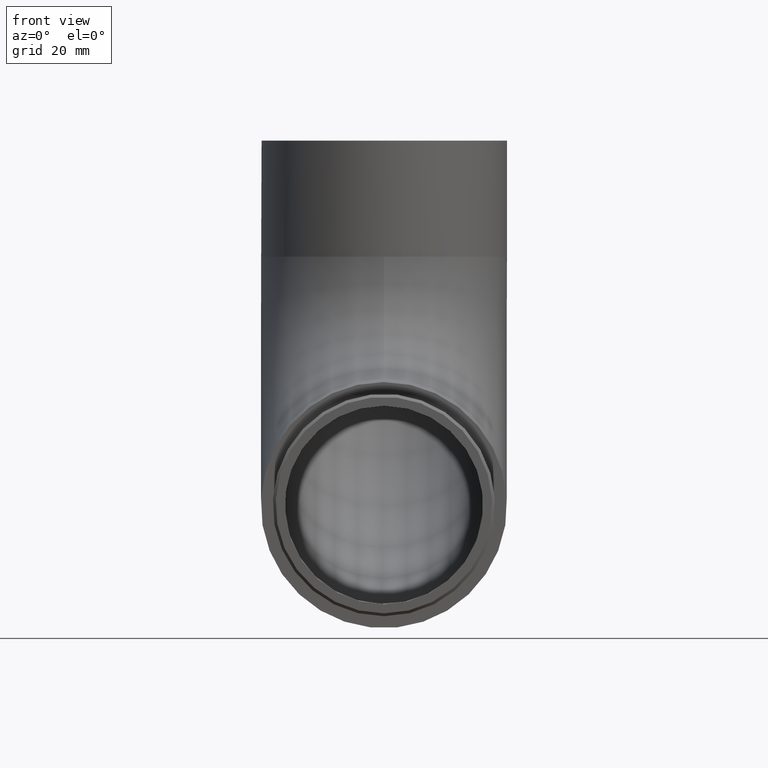
[diagram: clean part render]
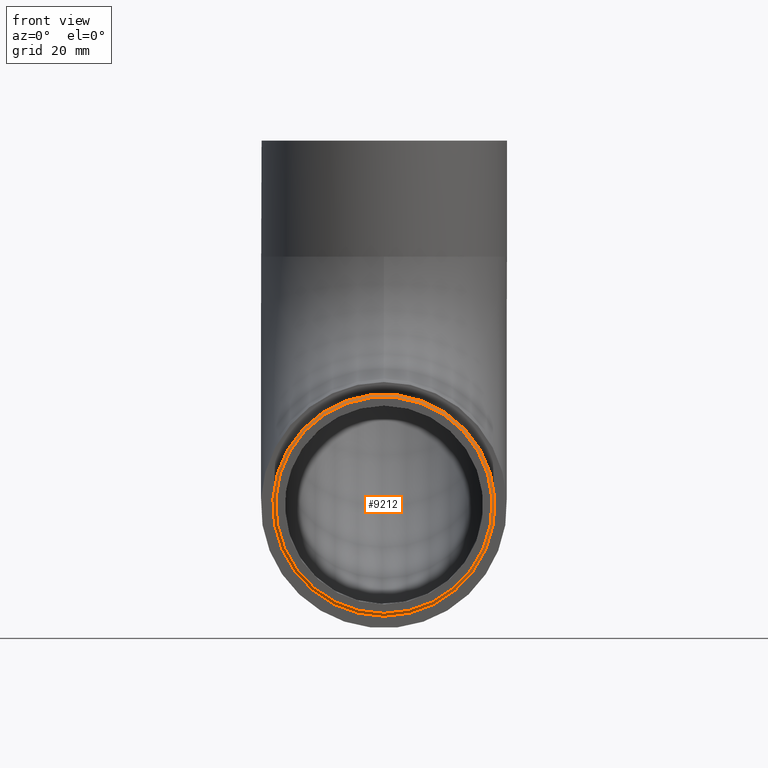
[diagram: same view with one face highlighted and labeled with its STEP entity id]
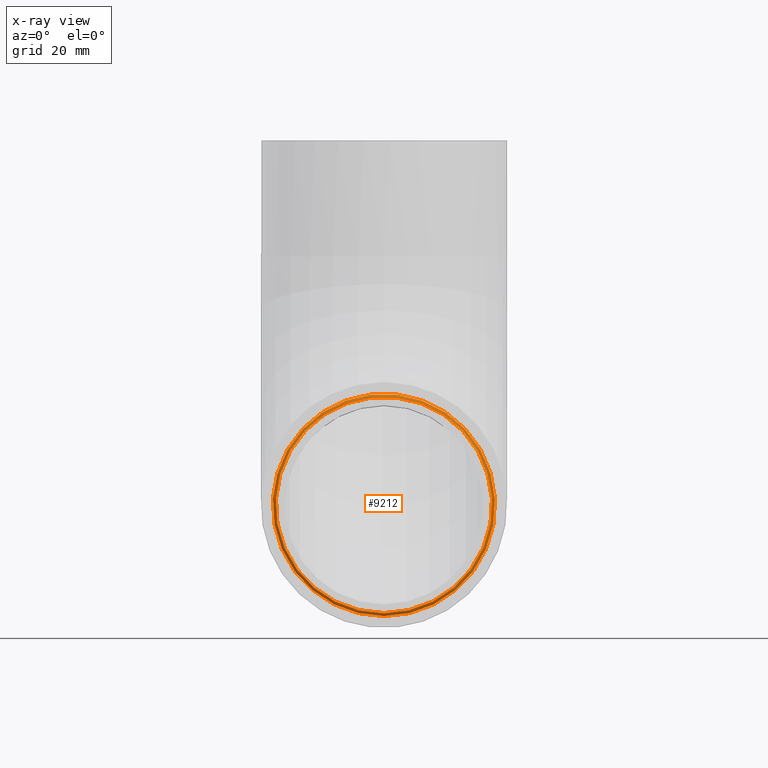
[diagram: x-ray of the same camera — body ghosted, the highlighted face saturated]
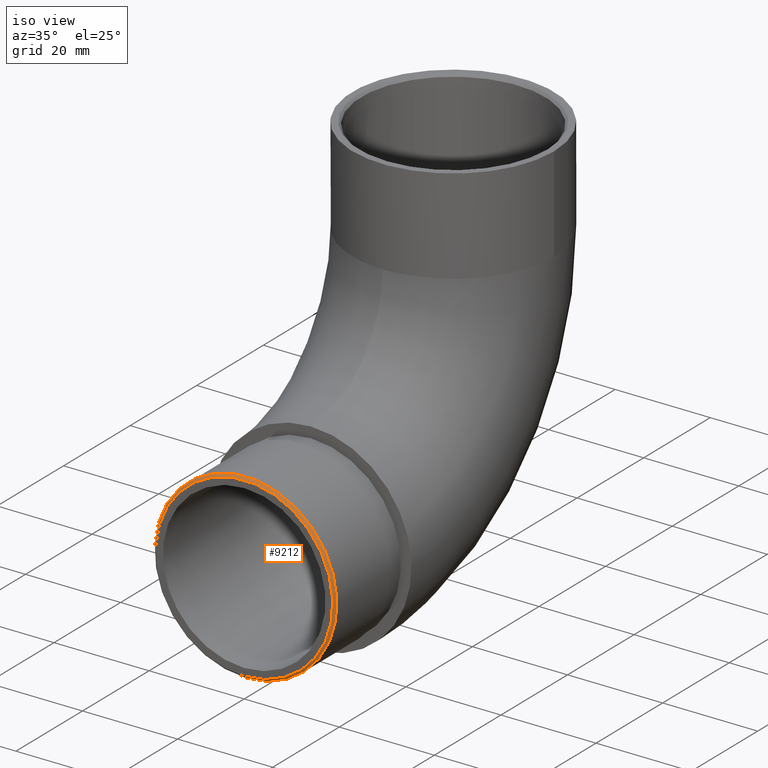
[diagram: same view with one face highlighted and labeled with its STEP entity id]
A machine part, front view. The second image highlights one B-rep face of the part: STEP entity #9212.
The next image is the same camera in x-ray: the body ghosted, the highlighted face saturated — about 0% of this face is hidden behind the body in this view.
A second angle (iso view) of the same face is appended — the face is thin or edge-on in the first view.
In plain terms, the highlighted conical surface has half-angle 45 deg.
Its self-contained STEP definition (entity closure, byte-faithful):
#281 = AXIS2_PLACEMENT_3D ( 'NONE', #9849, #1966, #5902 ) ;
#415 = EDGE_LOOP ( 'NONE', ( #5065 ) ) ;
#1966 = DIRECTION ( 'NONE',  ( 0.0000000000000000000, 1.000000000000000000, 0.0000000000000000000 ) ) ;
#2401 = AXIS2_PLACEMENT_3D ( 'NONE', #11824, #4967, #3973 ) ;
#3364 = CARTESIAN_POINT ( 'NONE',  ( 0.0000000000000000000, -20.00000000000000000, 0.0000000000000000000 ) ) ;
#3973 = DIRECTION ( 'NONE',  ( 0.0000000000000000000, 0.0000000000000000000, -1.000000000000000000 ) ) ;
#4339 = DIRECTION ( 'NONE',  ( 0.0000000000000000000, 0.0000000000000000000, 1.000000000000000000 ) ) ;
#4342 = ORIENTED_EDGE ( 'NONE', *, *, #10772, .F. ) ;
#4865 = CARTESIAN_POINT ( 'NONE',  ( 0.0000000000000000000, -19.50000000000001400, -19.14999999999999900 ) ) ;
#4967 = DIRECTION ( 'NONE',  ( 0.0000000000000000000, -1.000000000000000000, 0.0000000000000000000 ) ) ;
#5065 = ORIENTED_EDGE ( 'NONE', *, *, #5881, .F. ) ;
#5451 = FACE_OUTER_BOUND ( 'NONE', #415, .T. ) ;
#5881 = EDGE_CURVE ( 'NONE', #10355, #10355, #10538, .T. ) ;
#5902 = DIRECTION ( 'NONE',  ( 0.0000000000000000000, 0.0000000000000000000, -1.000000000000000000 ) ) ;
#8836 = CARTESIAN_POINT ( 'NONE',  ( 0.0000000000000000000, -20.00000000000000000, -18.65000000000002700 ) ) ;
#8944 = AXIS2_PLACEMENT_3D ( 'NONE', #3364, #10238, #4339 ) ;
#9123 = CIRCLE ( 'NONE', #2401, 18.65000000000002700 ) ;
#9212 = ADVANCED_FACE ( 'NONE', ( #5451, #10093 ), #11469, .T. ) ;
#9849 = CARTESIAN_POINT ( 'NONE',  ( 0.0000000000000000000, -19.50000000000001400, 0.0000000000000000000 ) ) ;
#10042 = VERTEX_POINT ( 'NONE', #8836 ) ;
#10093 = FACE_BOUND ( 'NONE', #12129, .T. ) ;
#10238 = DIRECTION ( 'NONE',  ( 0.0000000000000000000, 1.000000000000000000, 0.0000000000000000000 ) ) ;
#10355 = VERTEX_POINT ( 'NONE', #4865 ) ;
#10538 = CIRCLE ( 'NONE', #281, 19.14999999999999900 ) ;
#10772 = EDGE_CURVE ( 'NONE', #10042, #10042, #9123, .T. ) ;
#11469 = CONICAL_SURFACE ( 'NONE', #8944, 18.65000000000002700, 0.7853981633974309600 ) ;
#11824 = CARTESIAN_POINT ( 'NONE',  ( 0.0000000000000000000, -20.00000000000000000, 0.0000000000000000000 ) ) ;
#12129 = EDGE_LOOP ( 'NONE', ( #4342 ) ) ;